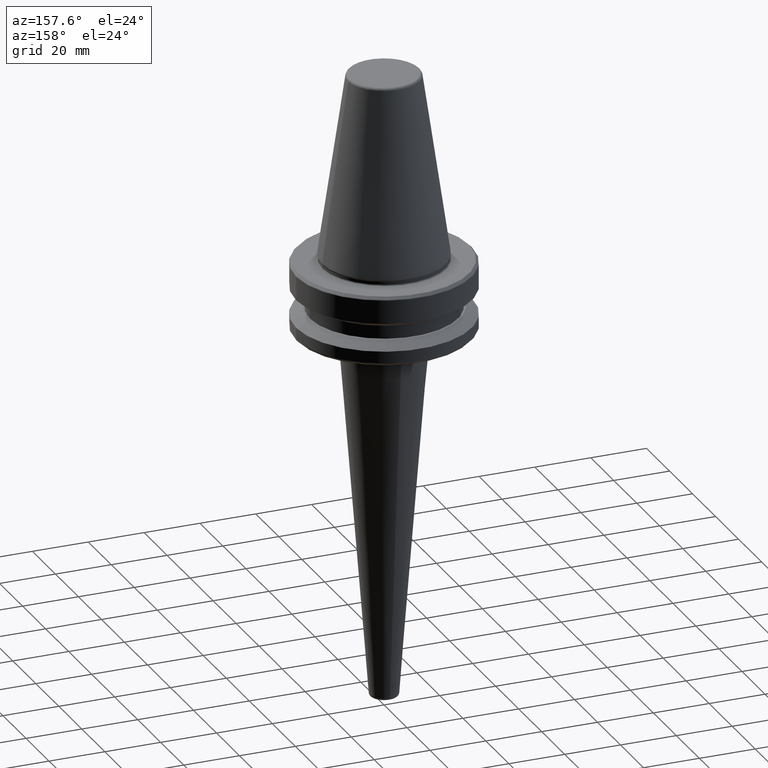
[diagram: clean part render]
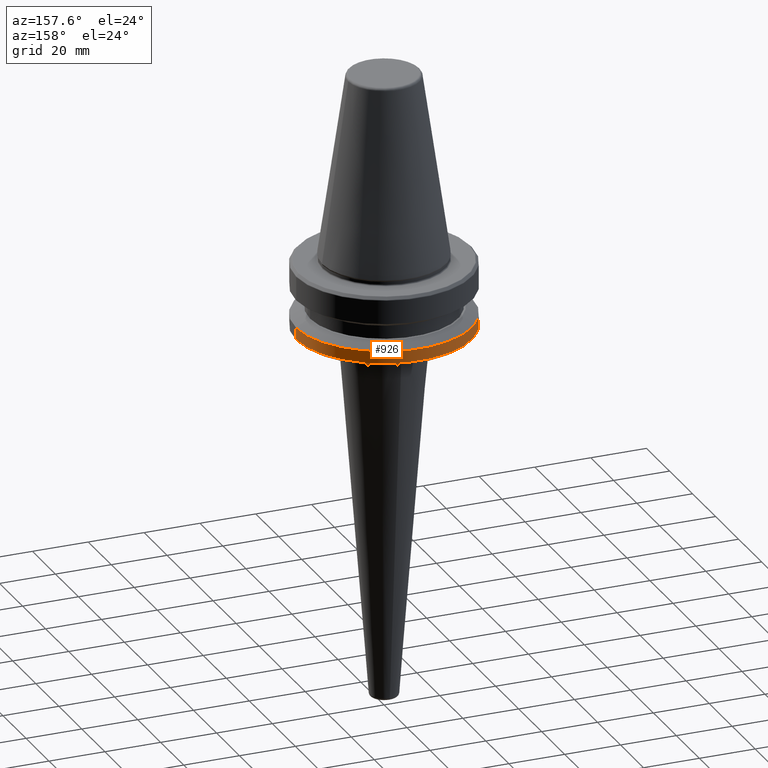
[diagram: same view with one face highlighted and labeled with its STEP entity id]
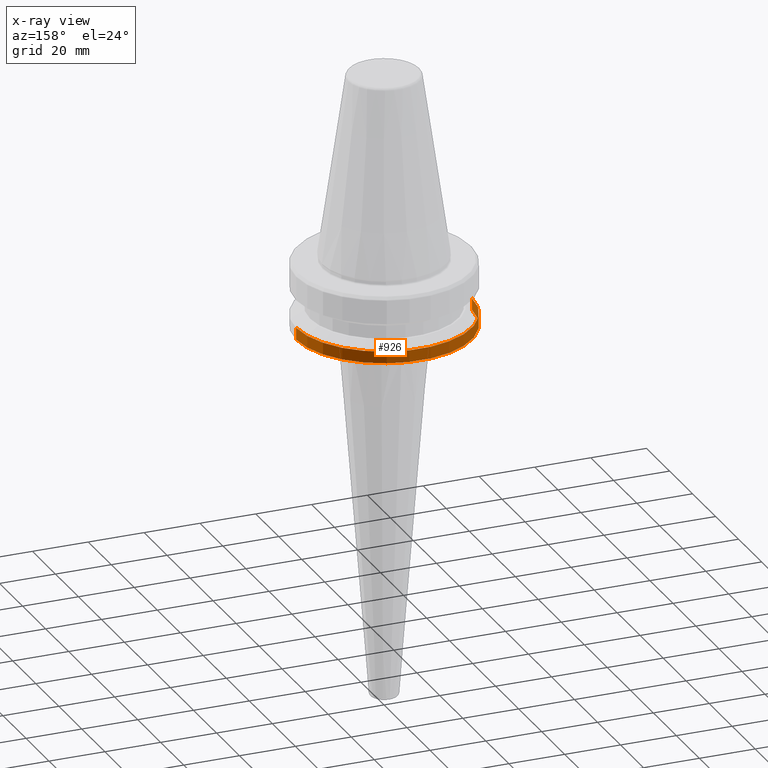
[diagram: x-ray of the same camera — body ghosted, the highlighted face saturated]
A machine part, auxiliary view. The second image highlights one B-rep face of the part: STEP entity #926.
The next image is the same camera in x-ray: the body ghosted, the highlighted face saturated — about 0% of this face is hidden behind the body in this view.
In plain terms, the highlighted cylindrical surface (partial cylindrical patch) has radius 31.5 mm, axis along (-0, -0, 1).
Its self-contained STEP definition (entity closure, byte-faithful):
#4 = ORIENTED_EDGE ( 'NONE', *, *, #1004, .F. ) ;
#8 = VERTEX_POINT ( 'NONE', #1128 ) ;
#78 = DIRECTION ( 'NONE',  ( 1.000000000000000000, 0.0000000000000000000, 0.0000000000000000000 ) ) ;
#113 = ORIENTED_EDGE ( 'NONE', *, *, #188, .F. ) ;
#164 = VERTEX_POINT ( 'NONE', #982 ) ;
#188 = EDGE_CURVE ( 'NONE', #710, #1067, #1120, .T. ) ;
#210 = CYLINDRICAL_SURFACE ( 'NONE', #432, 31.50000000000000000 ) ;
#240 = LINE ( 'NONE', #1213, #1183 ) ;
#279 = CIRCLE ( 'NONE', #1209, 31.50000000000000000 ) ;
#330 = CARTESIAN_POINT ( 'NONE',  ( 0.0000000000000000000, 0.0000000000000000000, -21.60014200631675500 ) ) ;
#346 = EDGE_CURVE ( 'NONE', #710, #164, #279, .T. ) ;
#428 = DIRECTION ( 'NONE',  ( 1.000000000000000000, 0.0000000000000000000, 0.0000000000000000000 ) ) ;
#432 = AXIS2_PLACEMENT_3D ( 'NONE', #1184, #619, #806 ) ;
#495 = FACE_OUTER_BOUND ( 'NONE', #1110, .T. ) ;
#565 = AXIS2_PLACEMENT_3D ( 'NONE', #330, #991, #428 ) ;
#606 = ORIENTED_EDGE ( 'NONE', *, *, #1151, .T. ) ;
#619 = DIRECTION ( 'NONE',  ( -0.0000000000000000000, -0.0000000000000000000, 1.000000000000000000 ) ) ;
#646 = DIRECTION ( 'NONE',  ( -0.0000000000000000000, -0.0000000000000000000, 1.000000000000000000 ) ) ;
#710 = VERTEX_POINT ( 'NONE', #770 ) ;
#770 = CARTESIAN_POINT ( 'NONE',  ( 31.50000000000000000, 0.0000000000000000000, -25.83431457505076900 ) ) ;
#806 = DIRECTION ( 'NONE',  ( 1.000000000000000000, 0.0000000000000000000, 0.0000000000000000000 ) ) ;
#836 = DIRECTION ( 'NONE',  ( -0.0000000000000000000, -0.0000000000000000000, 1.000000000000000000 ) ) ;
#861 = VECTOR ( 'NONE', #1173, 1000.000000000000000 ) ;
#886 = CARTESIAN_POINT ( 'NONE',  ( 31.50000000000000000, 0.0000000000000000000, 69.75694866325665100 ) ) ;
#903 = CARTESIAN_POINT ( 'NONE',  ( 31.50000000000000000, 0.0000000000000000000, -21.60014200631675500 ) ) ;
#926 = ADVANCED_FACE ( 'NONE', ( #495 ), #210, .T. ) ;
#947 = CIRCLE ( 'NONE', #565, 31.50000000000000000 ) ;
#982 = CARTESIAN_POINT ( 'NONE',  ( -31.50000000000000000, 3.857637417314162700E-015, -25.83431457505076900 ) ) ;
#991 = DIRECTION ( 'NONE',  ( -0.0000000000000000000, -0.0000000000000000000, 1.000000000000000000 ) ) ;
#1004 = EDGE_CURVE ( 'NONE', #1067, #8, #947, .T. ) ;
#1067 = VERTEX_POINT ( 'NONE', #903 ) ;
#1110 = EDGE_LOOP ( 'NONE', ( #1231, #606, #4, #113 ) ) ;
#1120 = LINE ( 'NONE', #886, #861 ) ;
#1128 = CARTESIAN_POINT ( 'NONE',  ( -31.50000000000000000, 3.857637417314162700E-015, -21.60014200631675500 ) ) ;
#1151 = EDGE_CURVE ( 'NONE', #164, #8, #240, .T. ) ;
#1173 = DIRECTION ( 'NONE',  ( -0.0000000000000000000, -0.0000000000000000000, 1.000000000000000000 ) ) ;
#1183 = VECTOR ( 'NONE', #836, 1000.000000000000000 ) ;
#1184 = CARTESIAN_POINT ( 'NONE',  ( 0.0000000000000000000, 0.0000000000000000000, 69.75694866325665100 ) ) ;
#1209 = AXIS2_PLACEMENT_3D ( 'NONE', #1214, #646, #78 ) ;
#1213 = CARTESIAN_POINT ( 'NONE',  ( -31.50000000000000000, 3.857637417314162700E-015, 69.75694866325665100 ) ) ;
#1214 = CARTESIAN_POINT ( 'NONE',  ( 0.0000000000000000000, 0.0000000000000000000, -25.83431457505076900 ) ) ;
#1231 = ORIENTED_EDGE ( 'NONE', *, *, #346, .T. ) ;